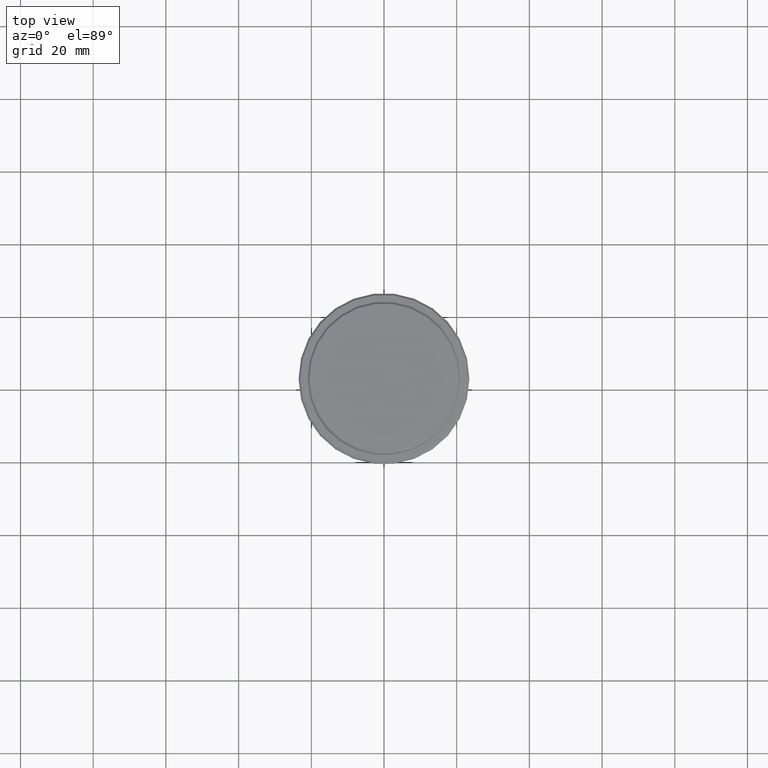
[diagram: clean part render]
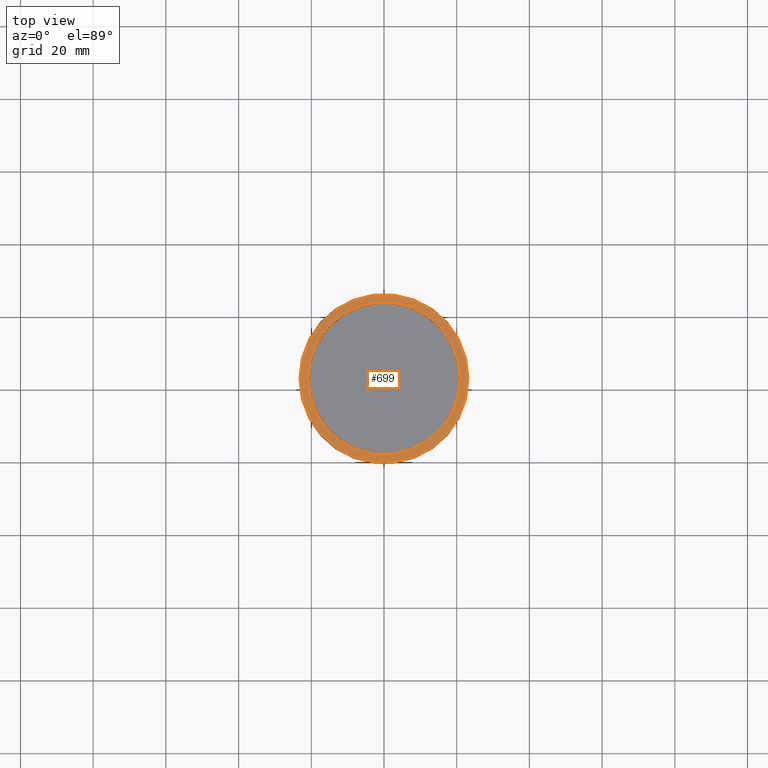
[diagram: same view with one face highlighted and labeled with its STEP entity id]
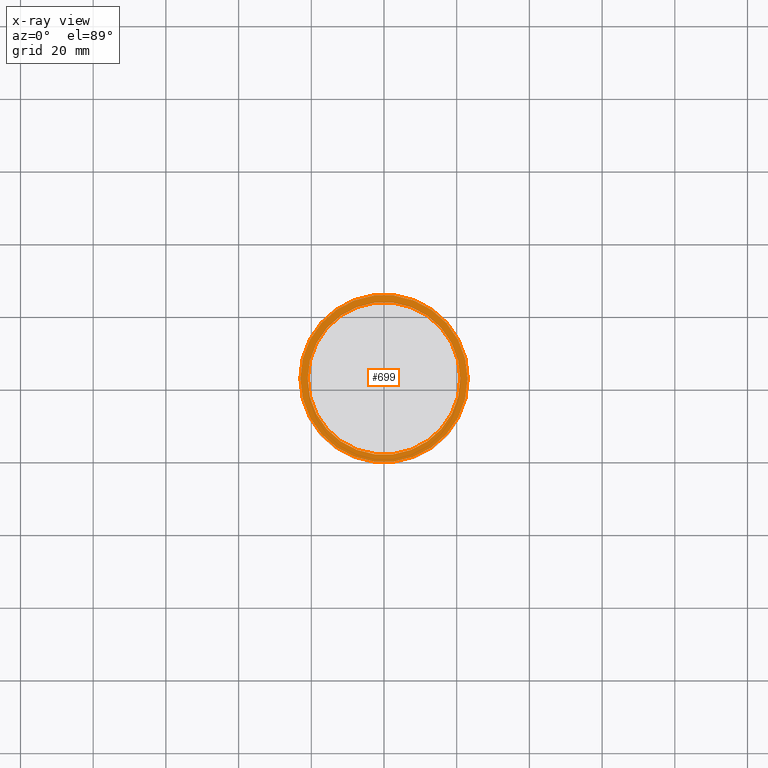
[diagram: x-ray of the same camera — body ghosted, the highlighted face saturated]
A machine part, top view. The second image highlights one B-rep face of the part: STEP entity #699.
The next image is the same camera in x-ray: the body ghosted, the highlighted face saturated — about 0% of this face is hidden behind the body in this view.
In plain terms, the highlighted planar face has unit normal (0, -0, 1).
Its self-contained STEP definition (entity closure, byte-faithful):
#26 = DIRECTION ( 'NONE',  ( 1.000000000000000000, 0.000000000000000000, 0.000000000000000000 ) ) ;
#34 = DIRECTION ( 'NONE',  ( 1.000000000000000000, 0.000000000000000000, 0.000000000000000000 ) ) ;
#37 = CARTESIAN_POINT ( 'NONE',  ( 23.00000000000002487, 2.847303808017597717E-15, -9.000000000000000000 ) ) ;
#48 = VERTEX_POINT ( 'NONE', #1372 ) ;
#80 = EDGE_CURVE ( 'NONE', #1135, #717, #1226, .T. ) ;
#132 = DIRECTION ( 'NONE',  ( 0.000000000000000000, 0.000000000000000000, -1.000000000000000000 ) ) ;
#145 = PLANE ( 'NONE',  #223 ) ;
#171 = EDGE_CURVE ( 'NONE', #48, #945, #1294, .T. ) ;
#186 = ORIENTED_EDGE ( 'NONE', *, *, #171, .T. ) ;
#194 = DIRECTION ( 'NONE',  ( -0.000000000000000000, -0.000000000000000000, 1.000000000000000000 ) ) ;
#219 = CARTESIAN_POINT ( 'NONE',  ( -20.99999999999999289, 2.571758278209440872E-15, -9.000000000000000000 ) ) ;
#223 = AXIS2_PLACEMENT_3D ( 'NONE', #805, #800, #34 ) ;
#258 = CARTESIAN_POINT ( 'NONE',  ( -23.00000000000002487, 0.000000000000000000, -9.000000000000000000 ) ) ;
#281 = EDGE_CURVE ( 'NONE', #945, #48, #477, .T. ) ;
#322 = ORIENTED_EDGE ( 'NONE', *, *, #1045, .T. ) ;
#337 = AXIS2_PLACEMENT_3D ( 'NONE', #1222, #132, #1134 ) ;
#437 = CIRCLE ( 'NONE', #1299, 23.00000000000002487 ) ;
#477 = CIRCLE ( 'NONE', #337, 20.99999999999999289 ) ;
#482 = DIRECTION ( 'NONE',  ( 0.000000000000000000, 0.000000000000000000, -1.000000000000000000 ) ) ;
#484 = FACE_BOUND ( 'NONE', #843, .T. ) ;
#630 = ORIENTED_EDGE ( 'NONE', *, *, #281, .T. ) ;
#685 = AXIS2_PLACEMENT_3D ( 'NONE', #793, #482, #26 ) ;
#692 = CARTESIAN_POINT ( 'NONE',  ( 0.000000000000000000, 0.000000000000000000, -9.000000000000000000 ) ) ;
#699 = ADVANCED_FACE ( 'NONE', ( #1355, #484 ), #145, .T. ) ;
#717 = VERTEX_POINT ( 'NONE', #258 ) ;
#757 = CARTESIAN_POINT ( 'NONE',  ( 0.000000000000000000, 0.000000000000000000, -9.000000000000000000 ) ) ;
#793 = CARTESIAN_POINT ( 'NONE',  ( 0.000000000000000000, 0.000000000000000000, -9.000000000000000000 ) ) ;
#796 = DIRECTION ( 'NONE',  ( -0.000000000000000000, -0.000000000000000000, 1.000000000000000000 ) ) ;
#800 = DIRECTION ( 'NONE',  ( 0.000000000000000000, -0.000000000000000000, 1.000000000000000000 ) ) ;
#805 = CARTESIAN_POINT ( 'NONE',  ( 0.000000000000000000, 20.49999999999999645, -9.000000000000000000 ) ) ;
#843 = EDGE_LOOP ( 'NONE', ( #186, #630 ) ) ;
#942 = ORIENTED_EDGE ( 'NONE', *, *, #80, .T. ) ;
#945 = VERTEX_POINT ( 'NONE', #219 ) ;
#977 = DIRECTION ( 'NONE',  ( 1.000000000000000000, 0.000000000000000000, 0.000000000000000000 ) ) ;
#1045 = EDGE_CURVE ( 'NONE', #717, #1135, #437, .T. ) ;
#1082 = EDGE_LOOP ( 'NONE', ( #322, #942 ) ) ;
#1134 = DIRECTION ( 'NONE',  ( 1.000000000000000000, 0.000000000000000000, 0.000000000000000000 ) ) ;
#1135 = VERTEX_POINT ( 'NONE', #37 ) ;
#1211 = DIRECTION ( 'NONE',  ( 1.000000000000000000, 0.000000000000000000, 0.000000000000000000 ) ) ;
#1222 = CARTESIAN_POINT ( 'NONE',  ( 0.000000000000000000, 0.000000000000000000, -9.000000000000000000 ) ) ;
#1226 = CIRCLE ( 'NONE', #1407, 23.00000000000002487 ) ;
#1294 = CIRCLE ( 'NONE', #685, 20.99999999999999289 ) ;
#1299 = AXIS2_PLACEMENT_3D ( 'NONE', #692, #796, #1211 ) ;
#1355 = FACE_OUTER_BOUND ( 'NONE', #1082, .T. ) ;
#1372 = CARTESIAN_POINT ( 'NONE',  ( 20.99999999999999289, 0.000000000000000000, -9.000000000000000000 ) ) ;
#1407 = AXIS2_PLACEMENT_3D ( 'NONE', #757, #194, #977 ) ;